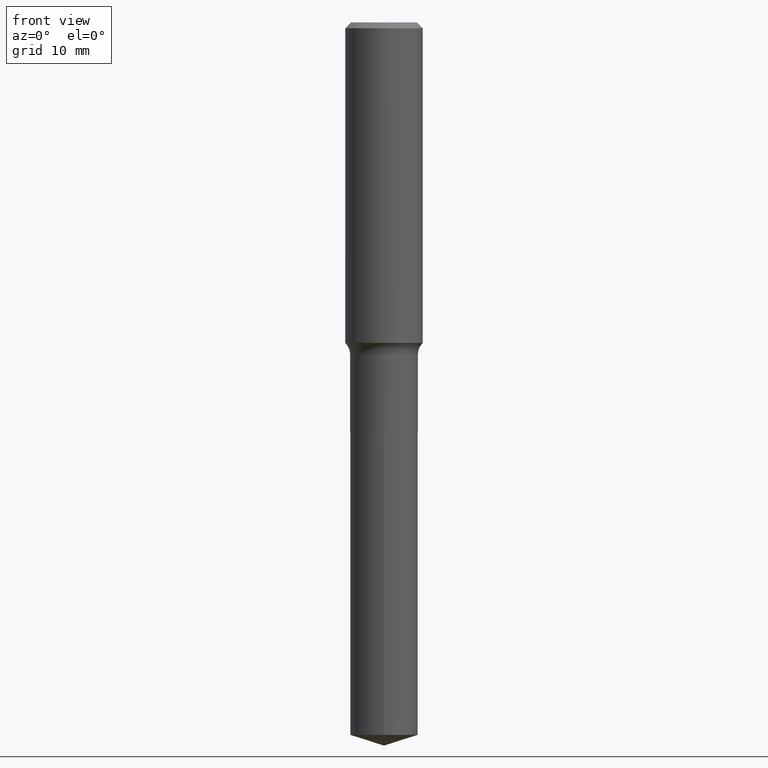
[diagram: clean part render]
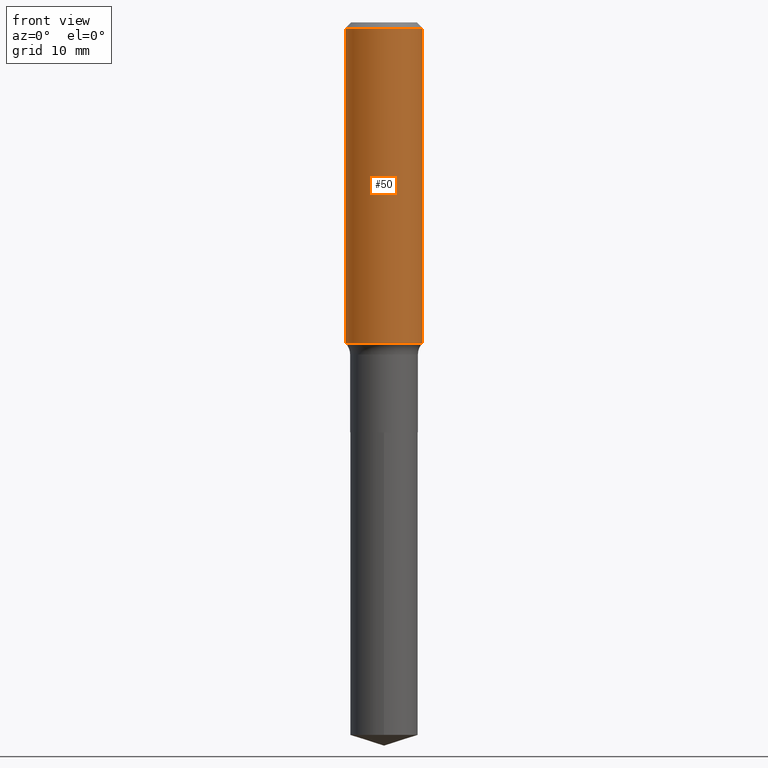
[diagram: same view with one face highlighted and labeled with its STEP entity id]
A machine part, front view. The second image highlights one B-rep face of the part: STEP entity #50.
In plain terms, the highlighted cylindrical surface (partial cylindrical patch) has radius 4.7625 mm, axis along (-0, 0, 1).
Its self-contained STEP definition (entity closure, byte-faithful):
#6 = LINE ( 'NONE', #203, #468 ) ;
#13 = CARTESIAN_POINT ( 'NONE',  ( 3.793528331565033205E-29, -5.416153068292034593E-15, -1.551247892416518726 ) ) ;
#33 = DIRECTION ( 'NONE',  ( -2.445468806185136877E-29, 3.491481338843145188E-15, 1.000000000000000000 ) ) ;
#35 = ORIENTED_EDGE ( 'NONE', *, *, #465, .F. ) ;
#42 = DIRECTION ( 'NONE',  ( -2.445468806185136597E-29, 3.491481338843145583E-15, 1.000000000000000000 ) ) ;
#50 = ADVANCED_FACE ( 'NONE', ( #207 ), #281, .T. ) ;
#72 = CARTESIAN_POINT ( 'NONE',  ( 0.1875000000000000555, -1.407503414721139514E-15, -0.02812500000000019151 ) ) ;
#76 = CIRCLE ( 'NONE', #107, 0.1875000000000001943 ) ;
#92 = VECTOR ( 'NONE', #33, 39.37007874015748143 ) ;
#107 = AXIS2_PLACEMENT_3D ( 'NONE', #13, #350, #391 ) ;
#113 = CARTESIAN_POINT ( 'NONE',  ( -0.1875000000000000555, -1.424907860923310518E-15, -0.02812500000000019151 ) ) ;
#122 = ORIENTED_EDGE ( 'NONE', *, *, #182, .T. ) ;
#144 = EDGE_CURVE ( 'NONE', #216, #233, #76, .T. ) ;
#181 = LINE ( 'NONE', #452, #92 ) ;
#182 = EDGE_CURVE ( 'NONE', #233, #265, #181, .T. ) ;
#203 = CARTESIAN_POINT ( 'NONE',  ( -0.1875000000000001110, 1.332267629550188637E-15, -9.223003294227953596E-30 ) ) ;
#207 = FACE_OUTER_BOUND ( 'NONE', #486, .T. ) ;
#216 = VERTEX_POINT ( 'NONE', #409 ) ;
#233 = VERTEX_POINT ( 'NONE', #414 ) ;
#265 = VERTEX_POINT ( 'NONE', #72 ) ;
#269 = DIRECTION ( 'NONE',  ( 1.000000000000000000, -6.982962677686265922E-15, 0.000000000000000000 ) ) ;
#281 = CYLINDRICAL_SURFACE ( 'NONE', #374, 0.1875000000000001110 ) ;
#293 = VERTEX_POINT ( 'NONE', #113 ) ;
#314 = DIRECTION ( 'NONE',  ( 1.000000000000000000, -6.982962677686266711E-15, 4.876176775795935793E-29 ) ) ;
#321 = AXIS2_PLACEMENT_3D ( 'NONE', #461, #42, #269 ) ;
#342 = CIRCLE ( 'NONE', #321, 0.1875000000000000555 ) ;
#350 = DIRECTION ( 'NONE',  ( -2.445468806185136597E-29, 3.491481338843145583E-15, 1.000000000000000000 ) ) ;
#353 = CARTESIAN_POINT ( 'NONE',  ( 0.000000000000000000, 0.000000000000000000, 0.000000000000000000 ) ) ;
#356 = DIRECTION ( 'NONE',  ( -2.445468806185136597E-29, 3.491481338843145583E-15, 1.000000000000000000 ) ) ;
#374 = AXIS2_PLACEMENT_3D ( 'NONE', #353, #356, #314 ) ;
#378 = EDGE_CURVE ( 'NONE', #293, #265, #342, .T. ) ;
#381 = DIRECTION ( 'NONE',  ( -2.445468806185136877E-29, 3.491481338843145188E-15, 1.000000000000000000 ) ) ;
#391 = DIRECTION ( 'NONE',  ( 1.000000000000000000, -6.982962677686265922E-15, 0.000000000000000000 ) ) ;
#406 = ORIENTED_EDGE ( 'NONE', *, *, #378, .F. ) ;
#409 = CARTESIAN_POINT ( 'NONE',  ( -0.1875000000000001943, -4.083885438741845167E-15, -1.551247892416518726 ) ) ;
#414 = CARTESIAN_POINT ( 'NONE',  ( 0.1875000000000001943, -6.725458570358210390E-15, -1.551247892416518726 ) ) ;
#452 = CARTESIAN_POINT ( 'NONE',  ( 0.1875000000000001110, -1.309305502066175797E-15, 9.142831454617385217E-30 ) ) ;
#461 = CARTESIAN_POINT ( 'NONE',  ( 6.877881017395743622E-31, -9.819791265496413635E-17, -0.02812500000000019151 ) ) ;
#464 = ORIENTED_EDGE ( 'NONE', *, *, #144, .T. ) ;
#465 = EDGE_CURVE ( 'NONE', #216, #293, #6, .T. ) ;
#468 = VECTOR ( 'NONE', #381, 39.37007874015748143 ) ;
#486 = EDGE_LOOP ( 'NONE', ( #35, #464, #122, #406 ) ) ;